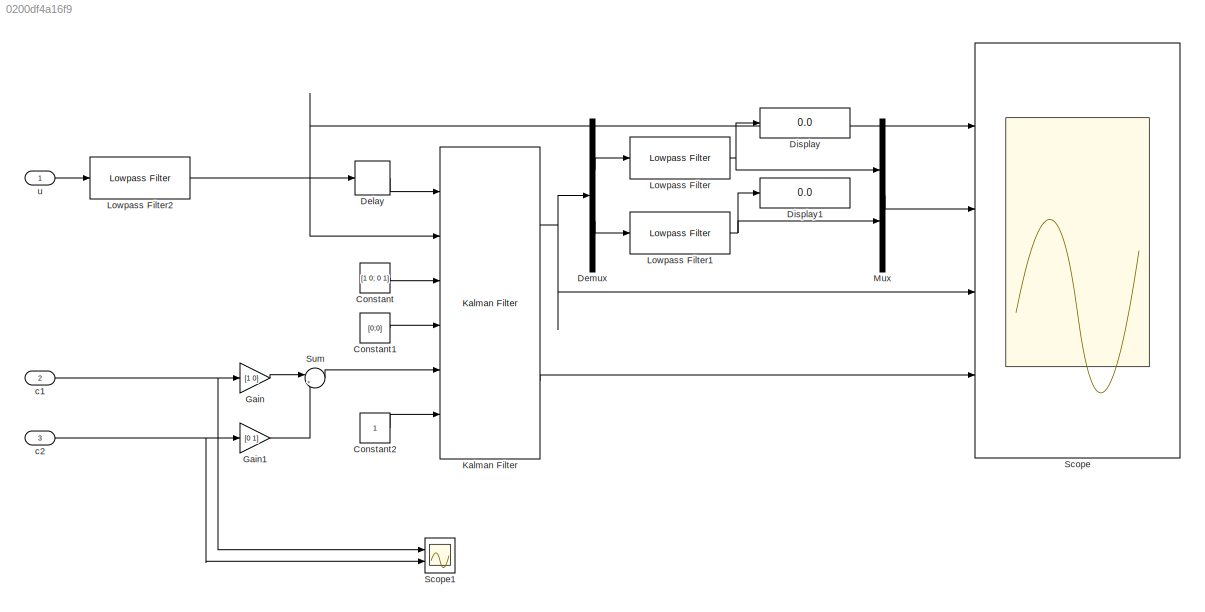
MODEL slx_0200df4a16f9
KIND model
CONFIG AbsTol = auto
CONFIG EnableMultiTasking = off
CONFIG FixedStep = auto
CONFIG MaxStep = auto
CONFIG MinStep = auto
CONFIG RelTol = 1e-5
CONFIG SampleTimeConstraint = Unconstrained
CONFIG Solver = VariableStepAuto
CONFIG SolverName = VariableStepAuto
CONFIG StartTime = 0
CONFIG StopTime = 65
BLOCK [Constant] Constant
  Value = [1 0; 0 1]
  VectorParams1D = off
BLOCK [Constant] Constant1
  LockScale = on
  Value = [0;0]
  VectorParams1D = off
BLOCK [Constant] Constant2
BLOCK [Delay] Delay
  DelayLength = 1
  InputPortMap = u0
  Ports = [1, 1]
BLOCK [Demux] Demux
  DisplayOption = bar
  Outputs = 2
  Ports = [1, 2]
BLOCK [Display] Display
  Decimation = 1
  Ports = [1]
BLOCK [Display] Display1
  Decimation = 1
  Ports = [1]
BLOCK [Gain] Gain
  Gain = [1 0]
  Multiplication = Matrix(u*K)
  OutDataTypeStr = Inherit: Inherit via internal rule
  ParamDataTypeStr = Inherit: Inherit via internal rule
  SaturateOnIntegerOverflow = off
BLOCK [Gain] Gain1
  Gain = [0 1]
  Multiplication = Matrix(u*K)
  OutDataTypeStr = Inherit: Inherit via internal rule
  ParamDataTypeStr = Inherit: Inherit via internal rule
  SaturateOnIntegerOverflow = off
BLOCK [Reference] Kalman Filter  REF=ctrlSharedLib/Kalman Filter
  Ports = [6, 3]
  SourceBlock = ctrlSharedLib/Kalman Filter
  SourceType = ctrlKalmanFilter
BLOCK [Reference] Lowpass Filter  REF=dspfdesign/Lowpass Filter
  Ports = [1, 1]
  SourceBlock = dspfdesign/Lowpass Filter
  SourceProductBaseCode = DS
  SourceProductName = DSP System Toolbox
  SourceType = dsp.LowpassFilter
BLOCK [Reference] Lowpass Filter1  REF=dspfdesign/Lowpass Filter
  Ports = [1, 1]
  SourceBlock = dspfdesign/Lowpass Filter
  SourceProductBaseCode = DS
  SourceProductName = DSP System Toolbox
  SourceType = dsp.LowpassFilter
BLOCK [Reference] Lowpass Filter2  REF=dspfdesign/Lowpass Filter
  Ports = [1, 1]
  SourceBlock = dspfdesign/Lowpass Filter
  SourceProductBaseCode = DS
  SourceProductName = DSP System Toolbox
  SourceType = dsp.LowpassFilter
BLOCK [Mux] Mux
  DisplayOption = bar
  Inputs = 2
  Ports = [2, 1]
BLOCK [Scope] Scope
  NumInputPorts = 4
  Ports = [4]
  ScopeSpecificationString = Simulink.scopes.TimeScopeBlockCfg('CurrentConfiguration', extmgr.ConfigurationSet(extmgr.Configuration('Core','General UI',true),extmgr.Configuration('Core','Source UI',true),extmgr.Configuration('Sources','WiredSimulink',true),extmgr.Configuration('Visuals','Time Domain',true,'SerializedDisplays',{struct('MinYLimReal','-20.78501','MaxYLimReal','21.381','YLabelReal','','MinYLimMag','0.00000','MaxY...<+3575ch>
BLOCK [Scope] Scope1
  NumInputPorts = 2
  Ports = [2]
  ScopeSpecificationString = Simulink.scopes.TimeScopeBlockCfg('CurrentConfiguration', extmgr.ConfigurationSet(extmgr.Configuration('Core','General UI',true),extmgr.Configuration('Core','Source UI',true),extmgr.Configuration('Sources','WiredSimulink',true,'DataLoggingVariableName','ScopeData1'),extmgr.Configuration('Visuals','Time Domain',true,'SerializedDisplays',{struct('MinYLimReal','0.34383','MaxYLimReal','0.36103','YLabe...<+2051ch>
BLOCK [Sum] Sum
  IconShape = round
  InputSameDT = off
  Inputs = |++
  OutDataTypeStr = Inherit: Inherit via internal rule
  Ports = [2, 1]
  SaturateOnIntegerOverflow = off
BLOCK [Inport] c1
  IconDisplay = Port number
  Port = 2
  PortDimensions = 1
  SampleTime = 0.002
BLOCK [Inport] c2
  IconDisplay = Port number
  Port = 3
  PortDimensions = 1
  SampleTime = 0.002
BLOCK [Inport] u
  IconDisplay = Port number
  PortDimensions = 1
  SampleTime = 0.002
LINE Constant1:1 -> Kalman Filter:4
LINE Constant2:1 -> Kalman Filter:6
LINE Constant:1 -> Kalman Filter:3
LINE Delay:1 -> Kalman Filter:1
LINE Demux:1 -> Lowpass Filter:1
LINE Demux:2 -> Lowpass Filter1:1
LINE Gain1:1 -> Sum:2
LINE Gain:1 -> Sum:1
NET Kalman Filter:1 -> Demux:1, Scope:3
LINE Kalman Filter:3 -> Scope:4
NET Lowpass Filter1:1 -> Display1:1, Mux:2
NET Lowpass Filter2:1 -> Delay:1, Kalman Filter:2, Scope:1
NET Lowpass Filter:1 -> Display:1, Mux:1
LINE Mux:1 -> Scope:2
LINE Sum:1 -> Kalman Filter:5
NET c1:1 -> Gain:1, Scope1:1
NET c2:1 -> Gain1:1, Scope1:2
LINE u:1 -> Lowpass Filter2:1
note: NET lines group one-source signal fan-out (src -> all destinations, sorted); 1:1 wires keep LINE
